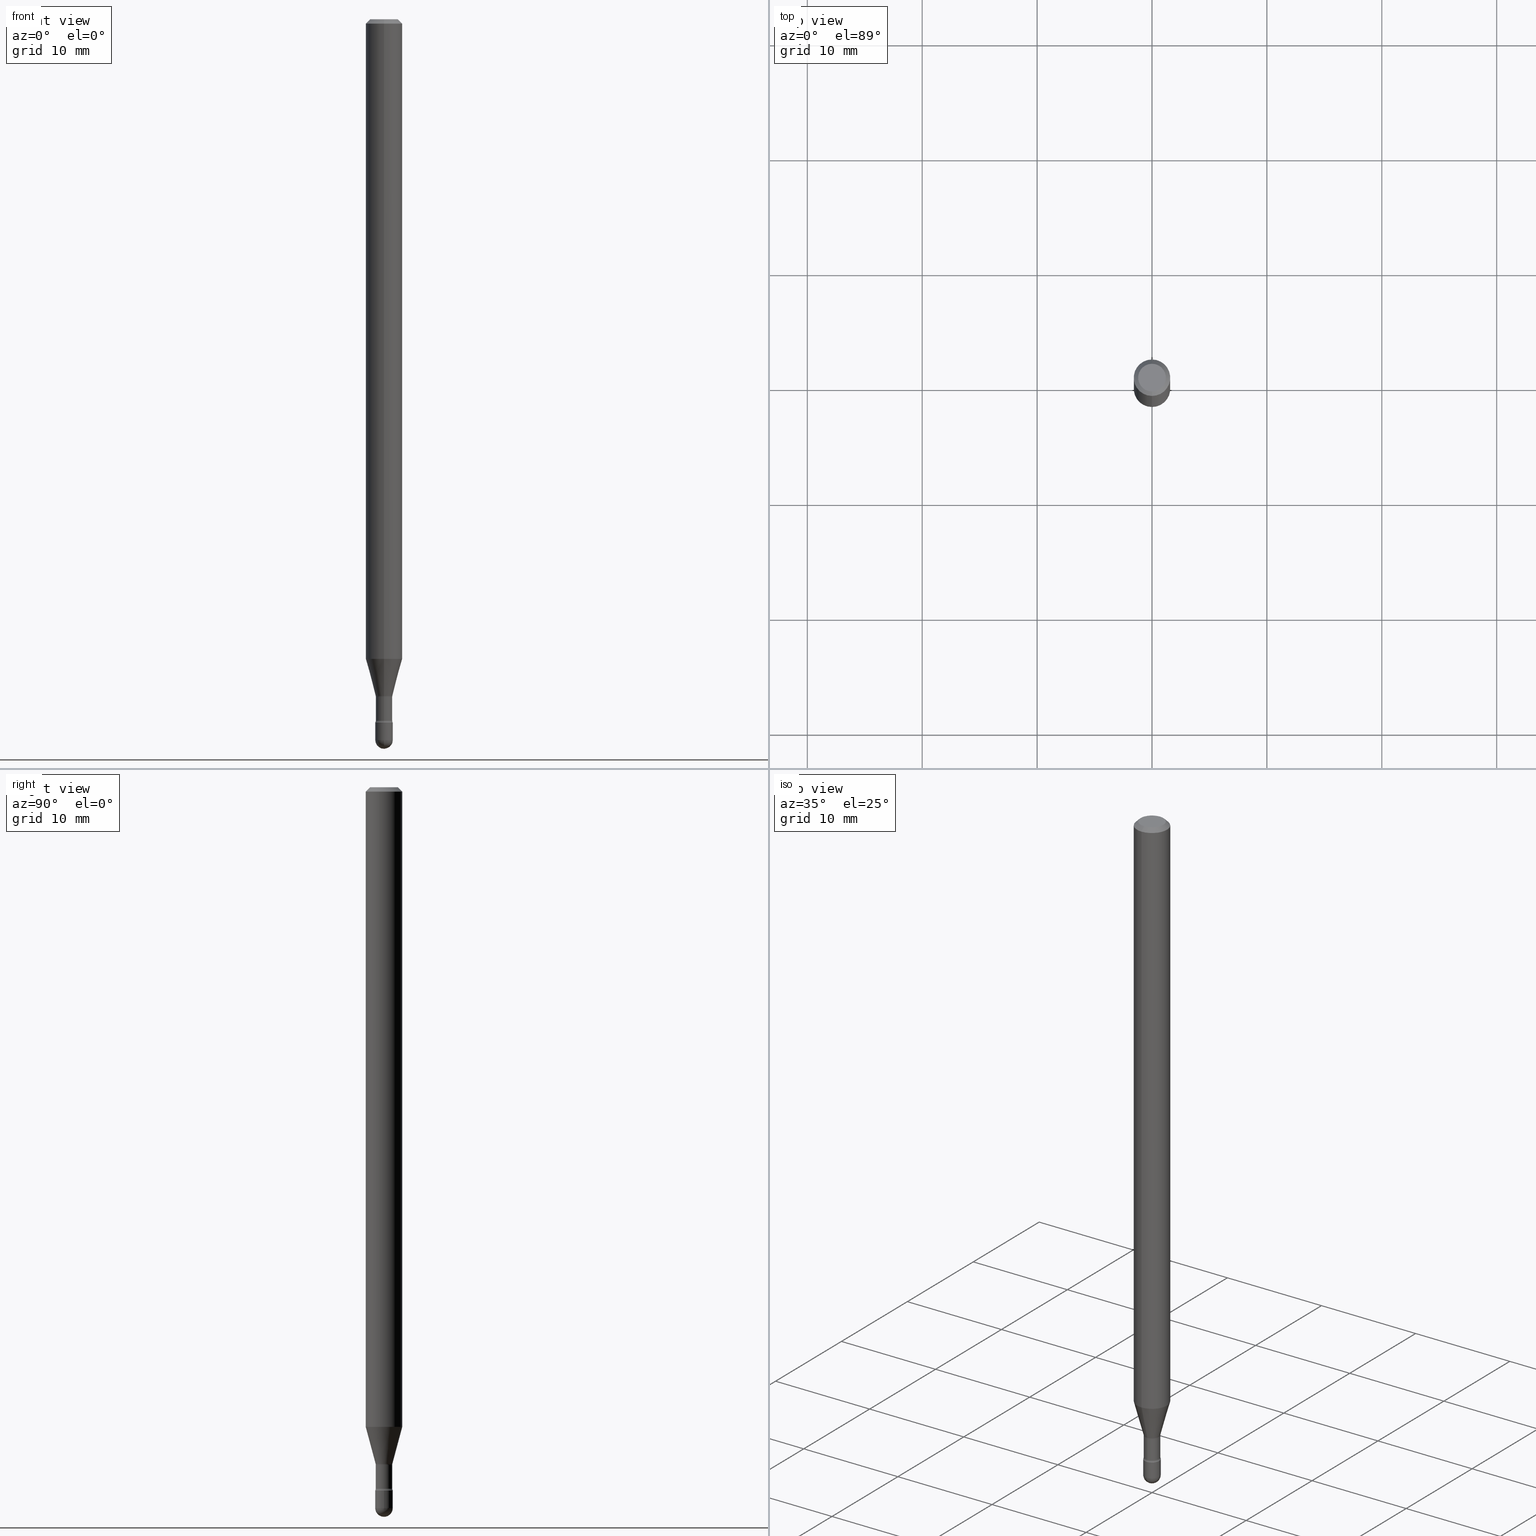
[diagram: canonical four-view strip — front | top / right | iso, engineering-drawing reading convention]
A machine part, canonical four-view strip (front | top / right | iso — engineering-drawing reading convention). The complete STEP part file that produces these views, byte-faithful:
ISO-10303-21;
HEADER;
FILE_DESCRIPTION (( 'STEP AP203' ),
    '1' );
FILE_NAME ('03817.STEP',
    '2024-04-09T20:35:23',
    ( '' ),
    ( '' ),
    'SwSTEP 2.0',
    'SolidWorks 2023',
    '' );
FILE_SCHEMA (( 'CONFIG_CONTROL_DESIGN' ));
ENDSEC;

DATA;
#1 = LINE ( 'NONE', #53, #278 ) ;
#2 = EDGE_CURVE ( 'NONE', #493, #97, #381, .T. ) ;
#3 = DIRECTION ( 'NONE',  ( 1.839019923739598738E-15, 0.2588190451025247363, 0.9659258262890673130 ) ) ;
#4 = DIRECTION ( 'NONE',  ( -2.445513622403205886E-29, 3.491417159468089591E-15, 1.000000000000000000 ) ) ;
#5 = EDGE_LOOP ( 'NONE', ( #270, #129, #211, #274 ) ) ;
#6 = CARTESIAN_POINT ( 'NONE',  ( 5.678316911491112973E-29, -8.107131639694176138E-15, -2.321974787463811030 ) ) ;
#7 = PLANE ( 'NONE',  #28 ) ;
#8 = AXIS2_PLACEMENT_3D ( 'NONE', #256, #91, #373 ) ;
#9 = CARTESIAN_POINT ( 'NONE',  ( 5.893579822906179826E-29, -8.414470026611981678E-15, -2.410000000000000142 ) ) ;
#10 = CC_DESIGN_APPROVAL ( #366, ( #403 ) ) ;
#11 = FACE_OUTER_BOUND ( 'NONE', #27, .T. ) ;
#12 = CARTESIAN_POINT ( 'NONE',  ( 3.668270433604828955E-31, -5.237125739202163402E-17, -0.01500000000000008271 ) ) ;
#13 = COORDINATED_UNIVERSAL_TIME_OFFSET ( 5, 0, .BEHIND. ) ;
#14 = APPLICATION_PROTOCOL_DEFINITION ( 'international standard', 'config_control_design', 1994, #488 ) ;
#15 = EDGE_CURVE ( 'NONE', #303, #379, #208, .T. ) ;
#16 = DIRECTION ( 'NONE',  ( -2.445513622403205886E-29, 3.491417159468089591E-15, 1.000000000000000000 ) ) ;
#17 = DIRECTION ( 'NONE',  ( -2.445468806185136597E-29, 3.491481338843145583E-15, 1.000000000000000000 ) ) ;
#18 = DATE_TIME_ROLE ( 'creation_date' ) ;
#19 = EDGE_LOOP ( 'NONE', ( #119, #241, #178, #385 ) ) ;
#20 = AXIS2_PLACEMENT_3D ( 'NONE', #398, #16, #508 ) ;
#21 = COORDINATED_UNIVERSAL_TIME_OFFSET ( 5, 0, .BEHIND. ) ;
#22 = PRODUCT_DEFINITION_SHAPE ( 'NONE', 'NONE',  #403 ) ;
#23 = CARTESIAN_POINT ( 'NONE',  ( 0.000000000000000000, 0.000000000000000000, 0.000000000000000000 ) ) ;
#24 = CC_DESIGN_PERSON_AND_ORGANIZATION_ASSIGNMENT ( #352, #282, ( #47 ) ) ;
#25 = DIRECTION ( 'NONE',  ( 1.000000000000000000, -6.982962677686299054E-15, 0.000000000000000000 ) ) ;
#26 = APPROVAL_DATE_TIME ( #554, #268 ) ;
#27 = EDGE_LOOP ( 'NONE', ( #31, #225, #355, #521 ) ) ;
#28 = AXIS2_PLACEMENT_3D ( 'NONE', #172, #523, #138 ) ;
#29 = CYLINDRICAL_SURFACE ( 'NONE', #193, 0.02819999999999999590 ) ;
#30 = ADVANCED_FACE ( 'NONE', ( #258 ), #40, .F. ) ;
#31 = ORIENTED_EDGE ( 'NONE', *, *, #250, .F. ) ;
#32 = FACE_OUTER_BOUND ( 'NONE', #518, .T. ) ;
#33 = DIRECTION ( 'NONE',  ( 6.982962677686265922E-15, 1.000000000000000000, 0.000000000000000000 ) ) ;
#34 = LINE ( 'NONE', #206, #430 ) ;
#35 = CONICAL_SURFACE ( 'NONE', #254, 0.02871111260566398468, 0.2617993877991500740 ) ;
#36 = APPROVAL_PERSON_ORGANIZATION ( #532, #366, #495 ) ;
#37 = ORIENTED_EDGE ( 'NONE', *, *, #463, .F. ) ;
#38 = ORIENTED_EDGE ( 'NONE', *, *, #15, .T. ) ;
#39 = EDGE_CURVE ( 'NONE', #184, #528, #45, .T. ) ;
#40 = PLANE ( 'NONE',  #117 ) ;
#41 = DIRECTION ( 'NONE',  ( -2.445513622403205886E-29, 3.491417159468089591E-15, 1.000000000000000000 ) ) ;
#42 = CARTESIAN_POINT ( 'NONE',  ( 4.440892098501159629E-16, 0.06249999999999233252, -2.191990657300388001 ) ) ;
#43 = ORIENTED_EDGE ( 'NONE', *, *, #60, .F. ) ;
#44 = EDGE_LOOP ( 'NONE', ( #336, #81, #212, #205, #319 ) ) ;
#45 = CIRCLE ( 'NONE', #8, 0.02819999999999999590 ) ;
#46 = CARTESIAN_POINT ( 'NONE',  ( 6.040307951277287977E-29, -8.623958906942569995E-15, -2.470000000000000195 ) ) ;
#47 = PRODUCT_DEFINITION_FORMATION_WITH_SPECIFIED_SOURCE ( 'ANY', '', #496, .NOT_KNOWN. ) ;
#48 = VERTEX_POINT ( 'NONE', #220 ) ;
#49 = EDGE_CURVE ( 'NONE', #442, #150, #489, .T. ) ;
#50 = ORIENTED_EDGE ( 'NONE', *, *, #361, .T. ) ;
#51 = DIRECTION ( 'NONE',  ( 1.000000000000000000, -6.982962677686299054E-15, 0.000000000000000000 ) ) ;
#52 = FACE_OUTER_BOUND ( 'NONE', #380, .T. ) ;
#53 = CARTESIAN_POINT ( 'NONE',  ( 2.003730514843481987E-16, 0.02819999999999999590, 3.796154349942459767E-16 ) ) ;
#54 = DIRECTION ( 'NONE',  ( 1.000000000000000000, -6.982962677686265922E-15, 4.883557194083112340E-29 ) ) ;
#55 = AXIS2_PLACEMENT_3D ( 'NONE', #233, #397, #145 ) ;
#56 = CC_DESIGN_SECURITY_CLASSIFICATION ( #490, ( #47 ) ) ;
#57 = EDGE_CURVE ( 'NONE', #522, #346, #243, .T. ) ;
#58 = CARTESIAN_POINT ( 'NONE',  ( 6.114954764896610855E-29, -8.726866376909143979E-15, -2.500000000000000000 ) ) ;
#59 = PERSON_AND_ORGANIZATION_ROLE ( 'design_supplier' ) ;
#60 = EDGE_CURVE ( 'NONE', #97, #493, #551, .T. ) ;
#61 = PERSON_AND_ORGANIZATION ( #392, #289 ) ;
#62 = CONICAL_SURFACE ( 'NONE', #136, 0.06250000000000000000, 0.7853981633974483900 ) ;
#63 = ADVANCED_FACE ( 'NONE', ( #566 ), #475, .T. ) ;
#64 = CYLINDRICAL_SURFACE ( 'NONE', #161, 0.03000000000000000583 ) ;
#65 = DATE_AND_TIME ( #190, #78 ) ;
#66 = DIRECTION ( 'NONE',  ( -6.982962677686265922E-15, -1.000000000000000000, 4.370956789862821150E-15 ) ) ;
#67 = DIRECTION ( 'NONE',  ( -2.445468806185136597E-29, 3.491481338843145583E-15, 1.000000000000000000 ) ) ;
#68 = DIRECTION ( 'NONE',  ( 2.445513622403205886E-29, -3.491417159468089591E-15, -1.000000000000000000 ) ) ;
#69 = AXIS2_PLACEMENT_3D ( 'NONE', #391, #260, #469 ) ;
#70 = APPROVAL ( #115, 'UNSPECIFIED' ) ;
#71 = FACE_OUTER_BOUND ( 'NONE', #19, .T. ) ;
#72 = FACE_OUTER_BOUND ( 'NONE', #113, .T. ) ;
#73 = DIRECTION ( 'NONE',  ( 6.982962677686265922E-15, 1.000000000000000000, -3.491417159468089197E-15 ) ) ;
#74 = ORIENTED_EDGE ( 'NONE', *, *, #546, .F. ) ;
#75 = COORDINATED_UNIVERSAL_TIME_OFFSET ( 5, 0, .BEHIND. ) ;
#76 = CC_DESIGN_PERSON_AND_ORGANIZATION_ASSIGNMENT ( #324, #492, ( #490 ) ) ;
#77 = AXIS2_PLACEMENT_3D ( 'NONE', #171, #128, #86 ) ;
#78 = LOCAL_TIME ( 16, 35, 23.00000000000000000, #457 ) ;
#79 = DIRECTION ( 'NONE',  ( -6.982962677686265922E-15, -1.000000000000000000, 3.491417159468089197E-15 ) ) ;
#80 = ORIENTED_EDGE ( 'NONE', *, *, #116, .T. ) ;
#81 = ORIENTED_EDGE ( 'NONE', *, *, #463, .T. ) ;
#82 = CARTESIAN_POINT ( 'NONE',  ( -2.094888803305290783E-16, -0.03000000000000841924, -2.410000000000000142 ) ) ;
#83 = ORIENTED_EDGE ( 'NONE', *, *, #39, .F. ) ;
#84 = ORIENTED_EDGE ( 'NONE', *, *, #341, .F. ) ;
#85 = LINE ( 'NONE', #135, #169 ) ;
#86 = DIRECTION ( 'NONE',  ( -6.982962677686265922E-15, -1.000000000000000000, 0.000000000000000000 ) ) ;
#87 = CARTESIAN_POINT ( 'NONE',  ( 5.678420973619539197E-29, -8.106982616803420603E-15, -2.321974787463811030 ) ) ;
#88 = VERTEX_POINT ( 'NONE', #180 ) ;
#89 = ORIENTED_EDGE ( 'NONE', *, *, #15, .F. ) ;
#90 = AXIS2_PLACEMENT_3D ( 'NONE', #120, #294, #73 ) ;
#91 = DIRECTION ( 'NONE',  ( -2.445513622403205886E-29, 3.491417159468089591E-15, 1.000000000000000000 ) ) ;
#92 = CIRCLE ( 'NONE', #125, 0.03000000000000000583 ) ;
#93 = CARTESIAN_POINT ( 'NONE',  ( 0.02999999999999999889, -8.623958906942569995E-15, -2.410000000000000142 ) ) ;
#94 = DIRECTION ( 'NONE',  ( -2.445513622403205886E-29, 3.491417159468089197E-15, 1.000000000000000000 ) ) ;
#95 = ADVANCED_FACE ( 'NONE', ( #290 ), #371, .T. ) ;
#96 = DIRECTION ( 'NONE',  ( -2.445513622403205886E-29, 3.491417159468089591E-15, 1.000000000000000000 ) ) ;
#97 = VERTEX_POINT ( 'NONE', #332 ) ;
#98 = CARTESIAN_POINT ( 'NONE',  ( -4.364351673553382241E-16, -0.06250000000000768829, -2.191990657300387557 ) ) ;
#99 = CARTESIAN_POINT ( 'NONE',  ( 5.678316911491112973E-29, -8.107131639694176138E-15, -2.321974787463811030 ) ) ;
#100 = ORIENTED_EDGE ( 'NONE', *, *, #437, .T. ) ;
#101 = CIRCLE ( 'NONE', #409, 0.02999999999999997807 ) ;
#102 = VECTOR ( 'NONE', #514, 39.37007874015748143 ) ;
#103 = DATE_AND_TIME ( #146, #157 ) ;
#104 = ORIENTED_EDGE ( 'NONE', *, *, #2, .T. ) ;
#105 = DESIGN_CONTEXT ( 'detailed design', #451, 'design' ) ;
#106 = CALENDAR_DATE ( 2024, 9, 4 ) ;
#107 = ADVANCED_FACE ( 'NONE', ( #72 ), #197, .T. ) ;
#108 = CARTESIAN_POINT ( 'NONE',  ( 6.040307951277287977E-29, -8.623958906942569995E-15, -2.470000000000000195 ) ) ;
#109 = DIRECTION ( 'NONE',  ( -2.445468806185136597E-29, 3.491481338843145583E-15, 1.000000000000000000 ) ) ;
#110 = COORDINATED_UNIVERSAL_TIME_OFFSET ( 5, 0, .BEHIND. ) ;
#111 = AXIS2_PLACEMENT_3D ( 'NONE', #384, #96, #269 ) ;
#112 = ADVANCED_FACE ( 'NONE', ( #387 ), #358, .F. ) ;
#113 = EDGE_LOOP ( 'NONE', ( #421, #369, #374, #445, #189 ) ) ;
#114 = EDGE_CURVE ( 'NONE', #549, #348, #504, .T. ) ;
#115 = APPROVAL_STATUS ( 'not_yet_approved' ) ;
#116 = EDGE_CURVE ( 'NONE', #316, #48, #393, .T. ) ;
#117 = AXIS2_PLACEMENT_3D ( 'NONE', #438, #234, #79 ) ;
#118 = LOCAL_TIME ( 16, 35, 23.00000000000000000, #75 ) ;
#119 = ORIENTED_EDGE ( 'NONE', *, *, #386, .T. ) ;
#120 = CARTESIAN_POINT ( 'NONE',  ( 3.316907271900976096E-16, 0.04749999999999999362, 3.181934407495850455E-17 ) ) ;
#121 = ADVANCED_FACE ( 'NONE', ( #501 ), #62, .T. ) ;
#122 = APPROVAL_ROLE ( '' ) ;
#123 = CARTESIAN_POINT ( 'NONE',  ( 3.668270433604828955E-31, -5.237125739202163402E-17, -0.01500000000000008271 ) ) ;
#124 = AXIS2_PLACEMENT_3D ( 'NONE', #292, #330, #547 ) ;
#125 = AXIS2_PLACEMENT_3D ( 'NONE', #126, #562, #181 ) ;
#126 = CARTESIAN_POINT ( 'NONE',  ( 6.040307951277287977E-29, -8.623958906942569995E-15, -2.470000000000000195 ) ) ;
#127 = ORIENTED_EDGE ( 'NONE', *, *, #491, .F. ) ;
#128 = DIRECTION ( 'NONE',  ( -2.445513622403205886E-29, 3.491417159468089591E-15, 1.000000000000000000 ) ) ;
#129 = ORIENTED_EDGE ( 'NONE', *, *, #57, .T. ) ;
#130 = EDGE_LOOP ( 'NONE', ( #283, #471, #343, #143 ) ) ;
#131 = ADVANCED_FACE ( 'NONE', ( #367 ), #29, .T. ) ;
#132 = CARTESIAN_POINT ( 'NONE',  ( -1.169113584055446105E-44, 1.669184350826100908E-30, 4.780733988912460139E-16 ) ) ;
#133 = DIRECTION ( 'NONE',  ( 1.000000000000000000, -6.982962677686268288E-15, 0.000000000000000000 ) ) ;
#134 = CARTESIAN_POINT ( 'NONE',  ( -2.004886277601425921E-16, -0.02871111260567207543, -2.318092501787273108 ) ) ;
#135 = CARTESIAN_POINT ( 'NONE',  ( 2.040047249755045120E-16, 0.02871111260565589046, -2.318092501787273108 ) ) ;
#136 = AXIS2_PLACEMENT_3D ( 'NONE', #459, #68, #412 ) ;
#137 = AXIS2_PLACEMENT_3D ( 'NONE', #351, #304, #133 ) ;
#138 = DIRECTION ( 'NONE',  ( 1.000000000000000000, -6.982962677686265922E-15, 4.876176775795935793E-29 ) ) ;
#139 = CARTESIAN_POINT ( 'NONE',  ( 3.069544618484199959E-16, 0.04319999999999189072, -2.321974787463811474 ) ) ;
#140 = DIRECTION ( 'NONE',  ( -6.982962677686266711E-15, -1.000000000000000000, 0.000000000000000000 ) ) ;
#141 = CYLINDRICAL_SURFACE ( 'NONE', #296, 0.02819999999999999590 ) ;
#142 = DIRECTION ( 'NONE',  ( 4.937700262164548042E-15, 0.7071067811865451302, -0.7071067811865499042 ) ) ;
#143 = ORIENTED_EDGE ( 'NONE', *, *, #536, .F. ) ;
#144 = EDGE_CURVE ( 'NONE', #417, #357, #183, .T. ) ;
#145 = DIRECTION ( 'NONE',  ( -6.982962677686263555E-15, -1.000000000000000000, 0.000000000000000000 ) ) ;
#146 = CALENDAR_DATE ( 2024, 9, 4 ) ;
#147 = AXIS2_PLACEMENT_3D ( 'NONE', #284, #494, #360 ) ;
#148 = CIRCLE ( 'NONE', #265, 0.02819999999999999590 ) ;
#149 = EDGE_CURVE ( 'NONE', #216, #346, #286, .T. ) ;
#150 = VERTEX_POINT ( 'NONE', #538 ) ;
#151 = DIRECTION ( 'NONE',  ( -2.445468806185136597E-29, 3.491481338843145583E-15, 1.000000000000000000 ) ) ;
#152 = MECHANICAL_CONTEXT ( 'NONE', #488, 'mechanical' ) ;
#153 = CARTESIAN_POINT ( 'NONE',  ( 0.03000000000000000583, -2.094888803305880457E-16, 1.462853032738781053E-30 ) ) ;
#154 = DIRECTION ( 'NONE',  ( 7.105427357600997914E-15, 1.000000000000000000, 0.000000000000000000 ) ) ;
#155 = PERSON_AND_ORGANIZATION_ROLE ( 'design_owner' ) ;
#156 = AXIS2_PLACEMENT_3D ( 'NONE', #139, #556, #154 ) ;
#157 = LOCAL_TIME ( 16, 35, 23.00000000000000000, #13 ) ;
#158 = ORIENTED_EDGE ( 'NONE', *, *, #210, .F. ) ;
#159 = EDGE_CURVE ( 'NONE', #184, #97, #524, .T. ) ;
#160 = VERTEX_POINT ( 'NONE', #454 ) ;
#161 = AXIS2_PLACEMENT_3D ( 'NONE', #23, #165, #510 ) ;
#162 = PLANE ( 'NONE',  #90 ) ;
#163 = EDGE_CURVE ( 'NONE', #481, #417, #365, .T. ) ;
#164 = ORIENTED_EDGE ( 'NONE', *, *, #149, .T. ) ;
#165 = DIRECTION ( 'NONE',  ( -2.445468806185136597E-29, 3.491481338843145583E-15, 1.000000000000000000 ) ) ;
#166 = CARTESIAN_POINT ( 'NONE',  ( 5.678420973619539197E-29, -8.106982616803420603E-15, -2.321974787463811030 ) ) ;
#167 = CARTESIAN_POINT ( 'NONE',  ( 4.364351673553919652E-16, 0.06249999999999995143, -0.01500000000000030129 ) ) ;
#168 = DIRECTION ( 'NONE',  ( -2.445513622403205886E-29, 3.491417159468089591E-15, 1.000000000000000000 ) ) ;
#169 = VECTOR ( 'NONE', #3, 39.37007874015748854 ) ;
#170 = CIRCLE ( 'NONE', #382, 0.04749999999999999362 ) ;
#171 = CARTESIAN_POINT ( 'NONE',  ( 5.893687829991725950E-29, -8.414315354318096676E-15, -2.410000000000000142 ) ) ;
#172 = CARTESIAN_POINT ( 'NONE',  ( 5.893579822906179826E-29, -8.414470026611981678E-15, -2.410000000000000142 ) ) ;
#173 = EDGE_LOOP ( 'NONE', ( #419, #43 ) ) ;
#174 = ORIENTED_EDGE ( 'NONE', *, *, #558, .F. ) ;
#175 = CC_DESIGN_DATE_AND_TIME_ASSIGNMENT ( #65, #18, ( #403 ) ) ;
#176 = ORIENTED_EDGE ( 'NONE', *, *, #159, .T. ) ;
#177 = DIRECTION ( 'NONE',  ( -6.982962677686265133E-15, -1.000000000000000000, 0.000000000000000000 ) ) ;
#178 = ORIENTED_EDGE ( 'NONE', *, *, #361, .F. ) ;
#179 = CARTESIAN_POINT ( 'NONE',  ( -3.016639876759879920E-16, -0.04320000000000839835, -2.402875394747777005 ) ) ;
#180 = CARTESIAN_POINT ( 'NONE',  ( 3.240469674128104223E-16, 0.02871111260565589046, -2.318092501787273108 ) ) ;
#181 = DIRECTION ( 'NONE',  ( 1.000000000000000000, -6.982962677686299054E-15, 0.000000000000000000 ) ) ;
#182 = ORIENTED_EDGE ( 'NONE', *, *, #354, .F. ) ;
#183 = CIRCLE ( 'NONE', #455, 0.02999999999999999889 ) ;
#184 = VERTEX_POINT ( 'NONE', #203 ) ;
#185 = ADVANCED_FACE ( 'NONE', ( #196 ), #64, .T. ) ;
#186 = CIRCLE ( 'NONE', #431, 0.02820000000000000284 ) ;
#187 = LINE ( 'NONE', #342, #232 ) ;
#188 = APPROVAL_DATE_TIME ( #103, #70 ) ;
#189 = ORIENTED_EDGE ( 'NONE', *, *, #354, .T. ) ;
#190 = CALENDAR_DATE ( 2024, 9, 4 ) ;
#191 = ORIENTED_EDGE ( 'NONE', *, *, #341, .T. ) ;
#192 = DIRECTION ( 'NONE',  ( 1.000000000000000000, -6.982962677686299054E-15, 0.000000000000000000 ) ) ;
#193 = AXIS2_PLACEMENT_3D ( 'NONE', #204, #545, #422 ) ;
#194 = CLOSED_SHELL ( 'NONE', ( #427, #131, #344, #121, #410, #207, #95, #63, #450, #215, #30, #112, #259, #325 ) ) ;
#195 = TOROIDAL_SURFACE ( 'NONE', #202, 0.04320000000000000923, 0.01500000000000001159 ) ;
#196 = FACE_OUTER_BOUND ( 'NONE', #44, .T. ) ;
#197 = CYLINDRICAL_SURFACE ( 'NONE', #248, 0.03000000000000000583 ) ;
#198 = DIRECTION ( 'NONE',  ( -2.445513622403205886E-29, 3.491417159468089591E-15, 1.000000000000000000 ) ) ;
#199 = ORIENTED_EDGE ( 'NONE', *, *, #460, .T. ) ;
#200 = MANIFOLD_SOLID_BREP ( 'Body-Move/Copy2[2]', #194 ) ;
#201 = CARTESIAN_POINT ( 'NONE',  ( -0.02999999999999999889, -8.306051646049246381E-15, -2.410000000000000142 ) ) ;
#202 = AXIS2_PLACEMENT_3D ( 'NONE', #530, #271, #439 ) ;
#203 = CARTESIAN_POINT ( 'NONE',  ( 2.067679361062480290E-16, 0.02819999999999161025, -2.402875394747777449 ) ) ;
#204 = CARTESIAN_POINT ( 'NONE',  ( -1.169113584055446105E-44, 1.669184350826100908E-30, 4.780733988912460139E-16 ) ) ;
#205 = ORIENTED_EDGE ( 'NONE', *, *, #163, .T. ) ;
#206 = CARTESIAN_POINT ( 'NONE',  ( -4.287811248607203282E-16, -0.06250000000000005551, -0.01499999999999986587 ) ) ;
#207 = ADVANCED_FACE ( 'NONE', ( #71 ), #35, .T. ) ;
#208 = CIRCLE ( 'NONE', #218, 0.06250000000000000000 ) ;
#209 = CIRCLE ( 'NONE', #69, 0.04749999999999999362 ) ;
#210 = EDGE_CURVE ( 'NONE', #339, #303, #34, .T. ) ;
#211 = ORIENTED_EDGE ( 'NONE', *, *, #239, .T. ) ;
#212 = ORIENTED_EDGE ( 'NONE', *, *, #546, .T. ) ;
#213 = DIRECTION ( 'NONE',  ( -6.982962677686265133E-15, -1.000000000000000000, 0.000000000000000000 ) ) ;
#214 = CARTESIAN_POINT ( 'NONE',  ( 6.040307951277287977E-29, -8.623958906942569995E-15, -2.470000000000000195 ) ) ;
#215 = ADVANCED_FACE ( 'NONE', ( #32 ), #162, .F. ) ;
#216 = VERTEX_POINT ( 'NONE', #134 ) ;
#217 = EDGE_LOOP ( 'NONE', ( #83, #176, #448, #517 ) ) ;
#218 = AXIS2_PLACEMENT_3D ( 'NONE', #123, #298, #468 ) ;
#219 = CIRCLE ( 'NONE', #478, 0.03000000000000000583 ) ;
#220 = CARTESIAN_POINT ( 'NONE',  ( -2.131628207279695521E-16, -0.03000000000000861353, -2.470000000000000195 ) ) ;
#221 = DIRECTION ( 'NONE',  ( -2.445468806185136597E-29, 3.491481338843145583E-15, 1.000000000000000000 ) ) ;
#222 = ORIENTED_EDGE ( 'NONE', *, *, #321, .F. ) ;
#223 = DIRECTION ( 'NONE',  ( -6.982962677686265922E-15, -1.000000000000000000, 4.370956789862821150E-15 ) ) ;
#224 = CARTESIAN_POINT ( 'NONE',  ( 2.094888803306483442E-16, 0.02999999999999137038, -2.470000000000000195 ) ) ;
#225 = ORIENTED_EDGE ( 'NONE', *, *, #386, .F. ) ;
#226 = SPHERICAL_SURFACE ( 'NONE', #477, 0.02999999999999997807 ) ;
#227 = CC_DESIGN_PERSON_AND_ORGANIZATION_ASSIGNMENT ( #534, #499, ( #403 ) ) ;
#228 = CARTESIAN_POINT ( 'NONE',  ( -4.364351673553912750E-16, -0.06250000000000005551, -0.01499999999999986587 ) ) ;
#229 = FACE_OUTER_BOUND ( 'NONE', #301, .T. ) ;
#230 = CARTESIAN_POINT ( 'NONE',  ( 6.040307951277287977E-29, -8.623958906942569995E-15, -2.470000000000000195 ) ) ;
#231 = AXIS2_PLACEMENT_3D ( 'NONE', #166, #41, #213 ) ;
#232 = VECTOR ( 'NONE', #473, 39.37007874015748143 ) ;
#233 = CARTESIAN_POINT ( 'NONE',  ( -3.016639876759899148E-16, -0.04320000000000810692, -2.321974787463811030 ) ) ;
#234 = DIRECTION ( 'NONE',  ( -2.445513622403205886E-29, 3.491417159468089197E-15, 1.000000000000000000 ) ) ;
#235 = APPROVAL_ROLE ( '' ) ;
#236 = CARTESIAN_POINT ( 'NONE',  ( -4.364351673553916201E-16, -0.06250000000000000000, 6.962869713580016380E-16 ) ) ;
#237 = DIRECTION ( 'NONE',  ( -2.445513622403205886E-29, 3.491417159468089591E-15, 1.000000000000000000 ) ) ;
#238 = APPROVAL_STATUS ( 'not_yet_approved' ) ;
#239 = EDGE_CURVE ( 'NONE', #346, #303, #308, .T. ) ;
#240 = DIRECTION ( 'NONE',  ( -1.807323732225328562E-15, -0.2588190451025179639, 0.9659258262890690894 ) ) ;
#241 = ORIENTED_EDGE ( 'NONE', *, *, #321, .T. ) ;
#242 =( NAMED_UNIT ( * ) SI_UNIT ( $, .STERADIAN. ) SOLID_ANGLE_UNIT ( ) );
#243 = CIRCLE ( 'NONE', #327, 0.06250000000000000000 ) ;
#244 = AXIS2_PLACEMENT_3D ( 'NONE', #46, #221, #51 ) ;
#245 = ADVANCED_FACE ( 'NONE', ( #52 ), #226, .T. ) ;
#246 = CARTESIAN_POINT ( 'NONE',  ( -2.004886277601425921E-16, -0.02871111260567207543, -2.318092501787273108 ) ) ;
#247 = EDGE_LOOP ( 'NONE', ( #470, #100 ) ) ;
#248 = AXIS2_PLACEMENT_3D ( 'NONE', #539, #109, #320 ) ;
#249 = AXIS2_PLACEMENT_3D ( 'NONE', #179, #434, #140 ) ;
#250 = EDGE_CURVE ( 'NONE', #88, #150, #349, .T. ) ;
#251 = DIRECTION ( 'NONE',  ( -2.445513622403205886E-29, 3.491417159468089591E-15, 1.000000000000000000 ) ) ;
#252 = ORIENTED_EDGE ( 'NONE', *, *, #281, .T. ) ;
#253 = ORIENTED_EDGE ( 'NONE', *, *, #210, .T. ) ;
#254 = AXIS2_PLACEMENT_3D ( 'NONE', #370, #251, #415 ) ;
#255 = LOCAL_TIME ( 16, 35, 23.00000000000000000, #110 ) ;
#256 = CARTESIAN_POINT ( 'NONE',  ( 5.876264510793170584E-29, -8.389440385286048886E-15, -2.402875394747777449 ) ) ;
#257 = DIRECTION ( 'NONE',  ( -2.445513622403205886E-29, 3.491417159468089591E-15, 1.000000000000000000 ) ) ;
#258 = FACE_OUTER_BOUND ( 'NONE', #173, .T. ) ;
#259 = ADVANCED_FACE ( 'NONE', ( #465 ), #141, .T. ) ;
#260 = DIRECTION ( 'NONE',  ( -2.445513622403205886E-29, 3.491417159468089591E-15, 1.000000000000000000 ) ) ;
#261 = LINE ( 'NONE', #345, #335 ) ;
#262 = CLOSED_SHELL ( 'NONE', ( #107, #245, #500, #472, #185 ) ) ;
#263 = EDGE_LOOP ( 'NONE', ( #174, #253, #38, #506 ) ) ;
#264 = TOROIDAL_SURFACE ( 'NONE', #418, 0.04320000000000000229, 0.01500000000000002373 ) ;
#265 = AXIS2_PLACEMENT_3D ( 'NONE', #273, #476, #441 ) ;
#266 = DIRECTION ( 'NONE',  ( -2.445513622403205886E-29, 3.491417159468089591E-15, 1.000000000000000000 ) ) ;
#267 = DIRECTION ( 'NONE',  ( -2.445513622403205886E-29, 3.491417159468089197E-15, 1.000000000000000000 ) ) ;
#268 = APPROVAL ( #544, 'UNSPECIFIED' ) ;
#269 = DIRECTION ( 'NONE',  ( -6.982962677686265922E-15, -1.000000000000000000, 3.491417159468089197E-15 ) ) ;
#270 = ORIENTED_EDGE ( 'NONE', *, *, #525, .F. ) ;
#271 = DIRECTION ( 'NONE',  ( -2.445513622403205886E-29, 3.491417159468089591E-15, 1.000000000000000000 ) ) ;
#272 = DIRECTION ( 'NONE',  ( -2.445513622403205886E-29, 3.491417159468089591E-15, 1.000000000000000000 ) ) ;
#273 = CARTESIAN_POINT ( 'NONE',  ( 5.876264510793170584E-29, -8.389440385286048886E-15, -2.402875394747777449 ) ) ;
#274 = ORIENTED_EDGE ( 'NONE', *, *, #396, .F. ) ;
#275 = FACE_OUTER_BOUND ( 'NONE', #311, .T. ) ;
#276 = DIRECTION ( 'NONE',  ( -6.982962677686265133E-15, -1.000000000000000000, 0.000000000000000000 ) ) ;
#277 = AXIS2_PLACEMENT_3D ( 'NONE', #280, #17, #192 ) ;
#278 = VECTOR ( 'NONE', #267, 39.37007874015748143 ) ;
#279 = PERSON_AND_ORGANIZATION ( #392, #289 ) ;
#280 = CARTESIAN_POINT ( 'NONE',  ( 6.040307951277287977E-29, -8.623958906942569995E-15, -2.470000000000000195 ) ) ;
#281 = EDGE_CURVE ( 'NONE', #316, #549, #101, .T. ) ;
#282 = PERSON_AND_ORGANIZATION_ROLE ( 'creator' ) ;
#283 = ORIENTED_EDGE ( 'NONE', *, *, #515, .F. ) ;
#284 = CARTESIAN_POINT ( 'NONE',  ( 3.069544618484220667E-16, 0.04319999999999161316, -2.402875394747777893 ) ) ;
#285 = DATE_AND_TIME ( #106, #542 ) ;
#286 = LINE ( 'NONE', #246, #334 ) ;
#287 = DATE_AND_TIME ( #402, #255 ) ;
#288 = DIRECTION ( 'NONE',  ( -2.445513622403205886E-29, 3.491417159468089591E-15, 1.000000000000000000 ) ) ;
#289 = ORGANIZATION ( 'UNSPECIFIED', 'UNSPECIFIED', '' ) ;
#290 = FACE_OUTER_BOUND ( 'NONE', #305, .T. ) ;
#291 =( LENGTH_UNIT ( ) NAMED_UNIT ( * ) SI_UNIT ( $, .METRE. ) );
#292 = CARTESIAN_POINT ( 'NONE',  ( 5.668926791111504643E-29, -8.093427937974399086E-15, -2.318092501787273108 ) ) ;
#293 = CIRCLE ( 'NONE', #249, 0.01500000000000001159 ) ;
#294 = DIRECTION ( 'NONE',  ( 2.445513622403205886E-29, -3.491417159468089197E-15, -1.000000000000000000 ) ) ;
#295 = DIMENSIONAL_EXPONENTS ( 1.000000000000000000, 0.000000000000000000, 0.000000000000000000, 0.000000000000000000, 0.000000000000000000, 0.000000000000000000, 0.000000000000000000 ) ;
#296 = AXIS2_PLACEMENT_3D ( 'NONE', #446, #272, #440 ) ;
#297 = CC_DESIGN_APPROVAL ( #268, ( #490 ) ) ;
#298 = DIRECTION ( 'NONE',  ( -2.445513622403205886E-29, 3.491417159468089591E-15, 1.000000000000000000 ) ) ;
#299 = DIRECTION ( 'NONE',  ( -1.000000000000000000, 6.982962677686265922E-15, -4.883557194083112340E-29 ) ) ;
#300 = EDGE_CURVE ( 'NONE', #216, #442, #466, .T. ) ;
#301 = EDGE_LOOP ( 'NONE', ( #84, #485, #425, #564 ) ) ;
#302 = ORIENTED_EDGE ( 'NONE', *, *, #491, .T. ) ;
#303 = VERTEX_POINT ( 'NONE', #228 ) ;
#304 = DIRECTION ( 'NONE',  ( -2.445468806185136597E-29, 3.491481338843145583E-15, 1.000000000000000000 ) ) ;
#305 = EDGE_LOOP ( 'NONE', ( #222, #191, #164, #474 ) ) ;
#306 = CC_DESIGN_DATE_AND_TIME_ASSIGNMENT ( #285, #453, ( #490 ) ) ;
#307 = LINE ( 'NONE', #167, #456 ) ;
#308 = LINE ( 'NONE', #236, #404 ) ;
#309 = AXIS2_PLACEMENT_3D ( 'NONE', #363, #540, #399 ) ;
#310 = DIRECTION ( 'NONE',  ( 2.445513622403205886E-29, -3.491417159468089591E-15, -1.000000000000000000 ) ) ;
#311 = EDGE_LOOP ( 'NONE', ( #50, #555, #89, #553 ) ) ;
#312 = DIRECTION ( 'NONE',  ( -1.000000000000000000, 6.982962677686265922E-15, -4.883557194083112340E-29 ) ) ;
#313 = CARTESIAN_POINT ( 'NONE',  ( -3.773273898774340269E-16, -0.04749999999999999362, 8.309223448287373581E-17 ) ) ;
#314 = CARTESIAN_POINT ( 'NONE',  ( 5.876156823005485882E-29, -8.389594600327222537E-15, -2.402875394747777449 ) ) ;
#315 = FACE_OUTER_BOUND ( 'NONE', #247, .T. ) ;
#316 = VERTEX_POINT ( 'NONE', #58 ) ;
#317 = LENGTH_MEASURE_WITH_UNIT ( LENGTH_MEASURE( 0.02539999999999999897 ), #291 );
#318 = CARTESIAN_POINT ( 'NONE',  ( 6.040307951277287977E-29, -8.623958906942569995E-15, -2.470000000000000195 ) ) ;
#319 = ORIENTED_EDGE ( 'NONE', *, *, #437, .F. ) ;
#320 = DIRECTION ( 'NONE',  ( 1.000000000000000000, -6.982962677686266711E-15, 4.876176775795935793E-29 ) ) ;
#321 = EDGE_CURVE ( 'NONE', #88, #522, #85, .T. ) ;
#322 = TOROIDAL_SURFACE ( 'NONE', #535, 0.04320000000000000229, 0.01500000000000002373 ) ;
#323 = CIRCLE ( 'NONE', #137, 0.02999999999999999889 ) ;
#324 = PERSON_AND_ORGANIZATION ( #392, #289 ) ;
#325 = ADVANCED_FACE ( 'NONE', ( #11 ), #322, .F. ) ;
#326 = APPROVAL_DATE_TIME ( #287, #366 ) ;
#327 = AXIS2_PLACEMENT_3D ( 'NONE', #560, #519, #223 ) ;
#328 = AXIS2_PLACEMENT_3D ( 'NONE', #435, #310, #557 ) ;
#329 = DIRECTION ( 'NONE',  ( -7.105427357601001070E-15, -1.000000000000000000, 0.000000000000000000 ) ) ;
#330 = DIRECTION ( 'NONE',  ( -2.445513622403205886E-29, 3.491417159468089591E-15, 1.000000000000000000 ) ) ;
#331 = UNCERTAINTY_MEASURE_WITH_UNIT (LENGTH_MEASURE( 1.000000000000000082E-05 ), #458, 'distance_accuracy_value', 'NONE');
#332 = CARTESIAN_POINT ( 'NONE',  ( 2.131628207280889906E-16, 0.02999999999999158548, -2.410000000000000142 ) ) ;
#333 = CC_DESIGN_PERSON_AND_ORGANIZATION_ASSIGNMENT ( #449, #59, ( #47 ) ) ;
#334 = VECTOR ( 'NONE', #240, 39.37007874015748854 ) ;
#335 = VECTOR ( 'NONE', #426, 39.37007874015748143 ) ;
#336 = ORIENTED_EDGE ( 'NONE', *, *, #541, .F. ) ;
#337 = EDGE_CURVE ( 'NONE', #528, #493, #293, .T. ) ;
#338 = LINE ( 'NONE', #377, #102 ) ;
#339 = VERTEX_POINT ( 'NONE', #313 ) ;
#340 = APPROVAL_PERSON_ORGANIZATION ( #61, #268, #122 ) ;
#341 = EDGE_CURVE ( 'NONE', #88, #216, #444, .T. ) ;
#342 = CARTESIAN_POINT ( 'NONE',  ( 4.440892098500625669E-16, 0.06250000000000000000, 2.598598264244904884E-16 ) ) ;
#343 = ORIENTED_EDGE ( 'NONE', *, *, #462, .T. ) ;
#344 = ADVANCED_FACE ( 'NONE', ( #533 ), #195, .F. ) ;
#345 = CARTESIAN_POINT ( 'NONE',  ( -0.03000000000000000583, 2.131628207280300972E-16, -1.475680527076471882E-30 ) ) ;
#346 = VERTEX_POINT ( 'NONE', #98 ) ;
#347 = DIRECTION ( 'NONE',  ( -6.982962677686266711E-15, -1.000000000000000000, 3.491417159468089591E-15 ) ) ;
#348 = VERTEX_POINT ( 'NONE', #480 ) ;
#349 = CIRCLE ( 'NONE', #156, 0.01500000000000002720 ) ;
#350 = CIRCLE ( 'NONE', #527, 0.06250000000000000000 ) ;
#351 = CARTESIAN_POINT ( 'NONE',  ( 5.893579822906179826E-29, -8.414470026611981678E-15, -2.410000000000000142 ) ) ;
#352 = PERSON_AND_ORGANIZATION ( #392, #289 ) ;
#353 = ORIENTED_EDGE ( 'NONE', *, *, #159, .F. ) ;
#354 = EDGE_CURVE ( 'NONE', #481, #549, #219, .T. ) ;
#355 = ORIENTED_EDGE ( 'NONE', *, *, #300, .T. ) ;
#356 = DIRECTION ( 'NONE',  ( -6.982962677686266711E-15, -1.000000000000000000, 3.491417159468089986E-15 ) ) ;
#357 = VERTEX_POINT ( 'NONE', #201 ) ;
#358 = TOROIDAL_SURFACE ( 'NONE', #443, 0.04320000000000000923, 0.01500000000000001159 ) ;
#359 = SECURITY_CLASSIFICATION_LEVEL ( 'unclassified' ) ;
#360 = DIRECTION ( 'NONE',  ( 7.105427357601001859E-15, 1.000000000000000000, 0.000000000000000000 ) ) ;
#361 = EDGE_CURVE ( 'NONE', #346, #522, #372, .T. ) ;
#362 =( NAMED_UNIT ( * ) PLANE_ANGLE_UNIT ( ) SI_UNIT ( $, .RADIAN. ) );
#363 = CARTESIAN_POINT ( 'NONE',  ( 0.000000000000000000, 0.000000000000000000, 0.000000000000000000 ) ) ;
#364 = AXIS2_PLACEMENT_3D ( 'NONE', #513, #376, #383 ) ;
#365 = LINE ( 'NONE', #153, #428 ) ;
#366 = APPROVAL ( #238, 'UNSPECIFIED' ) ;
#367 = FACE_OUTER_BOUND ( 'NONE', #420, .T. ) ;
#368 = EDGE_LOOP ( 'NONE', ( #509, #252, #182, #74 ) ) ;
#369 = ORIENTED_EDGE ( 'NONE', *, *, #541, .T. ) ;
#370 = CARTESIAN_POINT ( 'NONE',  ( 5.668926791111504643E-29, -8.093427937974399086E-15, -2.318092501787273108 ) ) ;
#371 = CONICAL_SURFACE ( 'NONE', #124, 0.02871111260566398468, 0.2617993877991500740 ) ;
#372 = CIRCLE ( 'NONE', #411, 0.06250000000000000000 ) ;
#373 = DIRECTION ( 'NONE',  ( -6.982962677686265922E-15, -1.000000000000000000, 0.000000000000000000 ) ) ;
#374 = ORIENTED_EDGE ( 'NONE', *, *, #144, .F. ) ;
#375 = CARTESIAN_POINT ( 'NONE',  ( 4.440892098501165545E-16, 0.06249999999999995143, -0.01500000000000030129 ) ) ;
#376 = DIRECTION ( 'NONE',  ( -2.445513622403205886E-29, 3.491417159468089591E-15, 1.000000000000000000 ) ) ;
#377 = CARTESIAN_POINT ( 'NONE',  ( -1.969195475107526777E-16, -0.02819999999999999590, 5.765313627882461990E-16 ) ) ;
#378 = CARTESIAN_POINT ( 'NONE',  ( -1.969195475106959290E-16, -0.02820000000000810747, -2.321974787463811030 ) ) ;
#379 = VERTEX_POINT ( 'NONE', #375 ) ;
#380 = EDGE_LOOP ( 'NONE', ( #487, #80, #37, #464 ) ) ;
#381 = CIRCLE ( 'NONE', #364, 0.02999999999999999889 ) ;
#382 = AXIS2_PLACEMENT_3D ( 'NONE', #389, #198, #356 ) ;
#383 = DIRECTION ( 'NONE',  ( -6.982962677686265922E-15, -1.000000000000000000, 0.000000000000000000 ) ) ;
#384 = CARTESIAN_POINT ( 'NONE',  ( -1.169113584055446105E-44, 1.669184350826100908E-30, 4.780733988912460139E-16 ) ) ;
#385 = ORIENTED_EDGE ( 'NONE', *, *, #149, .F. ) ;
#386 = EDGE_CURVE ( 'NONE', #216, #88, #552, .T. ) ;
#387 = FACE_OUTER_BOUND ( 'NONE', #401, .T. ) ;
#388 = DIRECTION ( 'NONE',  ( -6.982962677686265922E-15, -1.000000000000000000, 3.491417159468089197E-15 ) ) ;
#389 = CARTESIAN_POINT ( 'NONE',  ( 2.023878747840558367E-45, -2.888843688738174101E-31, -8.275008059186050695E-17 ) ) ;
#390 = ORIENTED_EDGE ( 'NONE', *, *, #337, .T. ) ;
#391 = CARTESIAN_POINT ( 'NONE',  ( 2.023878747840558367E-45, -2.888843688738174101E-31, -8.275008059186050695E-17 ) ) ;
#392 = PERSON ( 'UNSPECIFIED', 'UNSPECIFIED', 'UNSPECIFIED', ('UNSPECIFIED'), ('UNSPECIFIED'), ('UNSPECIFIED') ) ;
#393 = CIRCLE ( 'NONE', #561, 0.02999999999999997807 ) ;
#394 = CARTESIAN_POINT ( 'NONE',  ( 5.668926791111504643E-29, -8.093427937974399086E-15, -2.318092501787273108 ) ) ;
#395 = APPROVAL_PERSON_ORGANIZATION ( #447, #70, #235 ) ;
#396 = EDGE_CURVE ( 'NONE', #379, #303, #350, .T. ) ;
#397 = DIRECTION ( 'NONE',  ( -1.000000000000000000, 6.982962677686265922E-15, -4.883557194083112340E-29 ) ) ;
#398 = CARTESIAN_POINT ( 'NONE',  ( 5.668926791111504643E-29, -8.093427937974399086E-15, -2.318092501787273108 ) ) ;
#399 = DIRECTION ( 'NONE',  ( 1.000000000000000000, 0.000000000000000000, 0.000000000000000000 ) ) ;
#400 = DIRECTION ( 'NONE',  ( -6.982962677686266711E-15, -1.000000000000000000, 3.491417159468089591E-15 ) ) ;
#401 = EDGE_LOOP ( 'NONE', ( #353, #429, #390, #104 ) ) ;
#402 = CALENDAR_DATE ( 2024, 9, 4 ) ;
#403 = PRODUCT_DEFINITION ( 'UNKNOWN', '', #47, #105 ) ;
#404 = VECTOR ( 'NONE', #94, 39.37007874015748143 ) ;
#405 = CIRCLE ( 'NONE', #244, 0.03000000000000000583 ) ;
#406 = APPLICATION_PROTOCOL_DEFINITION ( 'international standard', 'config_control_design', 1994, #451 ) ;
#407 = EDGE_LOOP ( 'NONE', ( #158, #127, #199, #424 ) ) ;
#408 = SHAPE_DEFINITION_REPRESENTATION ( #22, #502 ) ;
#409 = AXIS2_PLACEMENT_3D ( 'NONE', #483, #54, #531 ) ;
#410 = ADVANCED_FACE ( 'NONE', ( #275 ), #559, .T. ) ;
#411 = AXIS2_PLACEMENT_3D ( 'NONE', #543, #288, #66 ) ;
#412 = DIRECTION ( 'NONE',  ( 6.982962677686265922E-15, 1.000000000000000000, -3.483106191921935554E-15 ) ) ;
#413 = CALENDAR_DATE ( 2024, 9, 4 ) ;
#414 = ORIENTED_EDGE ( 'NONE', *, *, #558, .T. ) ;
#415 = DIRECTION ( 'NONE',  ( -6.982962677686265133E-15, -1.000000000000000000, 0.000000000000000000 ) ) ;
#416 = EDGE_CURVE ( 'NONE', #528, #184, #148, .T. ) ;
#417 = VERTEX_POINT ( 'NONE', #93 ) ;
#418 = AXIS2_PLACEMENT_3D ( 'NONE', #99, #4, #347 ) ;
#419 = ORIENTED_EDGE ( 'NONE', *, *, #2, .F. ) ;
#420 = EDGE_LOOP ( 'NONE', ( #512, #432, #565, #526 ) ) ;
#421 = ORIENTED_EDGE ( 'NONE', *, *, #114, .T. ) ;
#422 = DIRECTION ( 'NONE',  ( -6.982962677686265922E-15, -1.000000000000000000, 3.491417159468089591E-15 ) ) ;
#423 = CARTESIAN_POINT ( 'NONE',  ( 0.03000000000000000583, -8.728703347107864943E-15, -2.470000000000000195 ) ) ;
#424 = ORIENTED_EDGE ( 'NONE', *, *, #396, .T. ) ;
#425 = ORIENTED_EDGE ( 'NONE', *, *, #536, .T. ) ;
#426 = DIRECTION ( 'NONE',  ( -2.445468806185136877E-29, 3.491481338843145188E-15, 1.000000000000000000 ) ) ;
#427 = ADVANCED_FACE ( 'NONE', ( #229 ), #264, .F. ) ;
#428 = VECTOR ( 'NONE', #452, 39.37007874015748143 ) ;
#429 = ORIENTED_EDGE ( 'NONE', *, *, #416, .F. ) ;
#430 = VECTOR ( 'NONE', #550, 39.37007874015748143 ) ;
#431 = AXIS2_PLACEMENT_3D ( 'NONE', #87, #529, #177 ) ;
#432 = ORIENTED_EDGE ( 'NONE', *, *, #515, .T. ) ;
#433 = CARTESIAN_POINT ( 'NONE',  ( -1.969195475106939322E-16, -0.02820000000000838503, -2.402875394747777449 ) ) ;
#434 = DIRECTION ( 'NONE',  ( -1.000000000000000000, 6.982962677686265922E-15, -4.883557194083112340E-29 ) ) ;
#435 = CARTESIAN_POINT ( 'NONE',  ( 3.668270433604828955E-31, -5.237125739202163402E-17, -0.01500000000000008271 ) ) ;
#436 = DIRECTION ( 'NONE',  ( -2.445513622403205886E-29, 3.491417159468089591E-15, 1.000000000000000000 ) ) ;
#437 = EDGE_CURVE ( 'NONE', #357, #417, #323, .T. ) ;
#438 = CARTESIAN_POINT ( 'NONE',  ( 2.094888803306469144E-16, 0.02999999999999158548, -2.410000000000000142 ) ) ;
#439 = DIRECTION ( 'NONE',  ( -6.982962677686266711E-15, -1.000000000000000000, 3.491417159468089591E-15 ) ) ;
#440 = DIRECTION ( 'NONE',  ( -6.982962677686265922E-15, -1.000000000000000000, 3.491417159468089591E-15 ) ) ;
#441 = DIRECTION ( 'NONE',  ( -6.982962677686265922E-15, -1.000000000000000000, 0.000000000000000000 ) ) ;
#442 = VERTEX_POINT ( 'NONE', #378 ) ;
#443 = AXIS2_PLACEMENT_3D ( 'NONE', #314, #237, #400 ) ;
#444 = CIRCLE ( 'NONE', #507, 0.02871111260566398468 ) ;
#445 = ORIENTED_EDGE ( 'NONE', *, *, #163, .F. ) ;
#446 = CARTESIAN_POINT ( 'NONE',  ( -1.169113584055446105E-44, 1.669184350826100908E-30, 4.780733988912460139E-16 ) ) ;
#447 = PERSON_AND_ORGANIZATION ( #392, #289 ) ;
#448 = ORIENTED_EDGE ( 'NONE', *, *, #60, .T. ) ;
#449 = PERSON_AND_ORGANIZATION ( #392, #289 ) ;
#450 = ADVANCED_FACE ( 'NONE', ( #484 ), #563, .T. ) ;
#451 = APPLICATION_CONTEXT ( 'configuration controlled 3d designs of mechanical parts and assemblies' ) ;
#452 = DIRECTION ( 'NONE',  ( -2.445468806185136877E-29, 3.491481338843145188E-15, 1.000000000000000000 ) ) ;
#453 = DATE_TIME_ROLE ( 'classification_date' ) ;
#454 = CARTESIAN_POINT ( 'NONE',  ( 3.840629472727447874E-16, 0.04749999999999999362, -2.485923956665947374E-16 ) ) ;
#455 = AXIS2_PLACEMENT_3D ( 'NONE', #9, #67, #503 ) ;
#456 = VECTOR ( 'NONE', #142, 39.37007874015748143 ) ;
#457 = COORDINATED_UNIVERSAL_TIME_OFFSET ( 5, 0, .BEHIND. ) ;
#458 =( CONVERSION_BASED_UNIT ( 'INCH', #317 ) LENGTH_UNIT ( ) NAMED_UNIT ( #295 ) );
#459 = CARTESIAN_POINT ( 'NONE',  ( 3.668270433604828955E-31, -5.237125739202163402E-17, -0.01500000000000008271 ) ) ;
#460 = EDGE_CURVE ( 'NONE', #160, #379, #307, .T. ) ;
#461 = DIRECTION ( 'NONE',  ( -1.000000000000000000, 7.105427357601001070E-15, -4.926315508542082329E-29 ) ) ;
#462 = EDGE_CURVE ( 'NONE', #528, #442, #338, .T. ) ;
#463 = EDGE_CURVE ( 'NONE', #348, #48, #92, .T. ) ;
#464 = ORIENTED_EDGE ( 'NONE', *, *, #114, .F. ) ;
#465 = FACE_OUTER_BOUND ( 'NONE', #130, .T. ) ;
#466 = CIRCLE ( 'NONE', #55, 0.01500000000000002720 ) ;
#467 = CC_DESIGN_APPROVAL ( #70, ( #47 ) ) ;
#468 = DIRECTION ( 'NONE',  ( -6.982962677686265922E-15, -1.000000000000000000, 3.483106191921935554E-15 ) ) ;
#469 = DIRECTION ( 'NONE',  ( -6.982962677686266711E-15, -1.000000000000000000, 3.491417159468089986E-15 ) ) ;
#470 = ORIENTED_EDGE ( 'NONE', *, *, #144, .T. ) ;
#471 = ORIENTED_EDGE ( 'NONE', *, *, #39, .T. ) ;
#472 = ADVANCED_FACE ( 'NONE', ( #516 ), #479, .T. ) ;
#473 = DIRECTION ( 'NONE',  ( -2.445513622403205886E-29, 3.491417159468089197E-15, 1.000000000000000000 ) ) ;
#474 = ORIENTED_EDGE ( 'NONE', *, *, #57, .F. ) ;
#475 = CYLINDRICAL_SURFACE ( 'NONE', #497, 0.06250000000000000000 ) ;
#476 = DIRECTION ( 'NONE',  ( -2.445513622403205886E-29, 3.491417159468089591E-15, 1.000000000000000000 ) ) ;
#477 = AXIS2_PLACEMENT_3D ( 'NONE', #230, #312, #33 ) ;
#478 = AXIS2_PLACEMENT_3D ( 'NONE', #318, #151, #25 ) ;
#479 = SPHERICAL_SURFACE ( 'NONE', #537, 0.02999999999999997807 ) ;
#480 = CARTESIAN_POINT ( 'NONE',  ( -0.03000000000000000583, -8.306051646049246381E-15, -2.470000000000000195 ) ) ;
#481 = VERTEX_POINT ( 'NONE', #423 ) ;
#482 = PRODUCT_RELATED_PRODUCT_CATEGORY ( 'detail', '', ( #496 ) ) ;
#483 = CARTESIAN_POINT ( 'NONE',  ( 6.040307951277287977E-29, -8.623958906942569995E-15, -2.470000000000000195 ) ) ;
#484 = FACE_OUTER_BOUND ( 'NONE', #407, .T. ) ;
#485 = ORIENTED_EDGE ( 'NONE', *, *, #250, .T. ) ;
#486 = DIRECTION ( 'NONE',  ( -6.982962677686266711E-15, -1.000000000000000000, 3.491417159468089591E-15 ) ) ;
#487 = ORIENTED_EDGE ( 'NONE', *, *, #281, .F. ) ;
#488 = APPLICATION_CONTEXT ( 'configuration controlled 3d designs of mechanical parts and assemblies' ) ;
#489 = CIRCLE ( 'NONE', #231, 0.02820000000000000284 ) ;
#490 = SECURITY_CLASSIFICATION ( '', '', #359 ) ;
#491 = EDGE_CURVE ( 'NONE', #160, #339, #209, .T. ) ;
#492 = PERSON_AND_ORGANIZATION_ROLE ( 'classification_officer' ) ;
#493 = VERTEX_POINT ( 'NONE', #82 ) ;
#494 = DIRECTION ( 'NONE',  ( 1.000000000000000000, -7.105427357601001070E-15, 4.926314722571419961E-29 ) ) ;
#495 = APPROVAL_ROLE ( '' ) ;
#496 = PRODUCT ( '03817', '03817', '', ( #152 ) ) ;
#497 = AXIS2_PLACEMENT_3D ( 'NONE', #132, #266, #388 ) ;
#498 =( GEOMETRIC_REPRESENTATION_CONTEXT ( 3 ) GLOBAL_UNCERTAINTY_ASSIGNED_CONTEXT ( ( #331 ) ) GLOBAL_UNIT_ASSIGNED_CONTEXT ( ( #458, #362, #242 ) ) REPRESENTATION_CONTEXT ( 'NONE', 'WORKASPACE' ) );
#499 = PERSON_AND_ORGANIZATION_ROLE ( 'creator' ) ;
#500 = ADVANCED_FACE ( 'NONE', ( #315 ), #7, .T. ) ;
#501 = FACE_OUTER_BOUND ( 'NONE', #263, .T. ) ;
#502 = ADVANCED_BREP_SHAPE_REPRESENTATION ( '03817', ( #548, #200, #309 ), #498 ) ;
#503 = DIRECTION ( 'NONE',  ( 1.000000000000000000, -6.982962677686268288E-15, 0.000000000000000000 ) ) ;
#504 = CIRCLE ( 'NONE', #277, 0.03000000000000000583 ) ;
#505 = CC_DESIGN_PERSON_AND_ORGANIZATION_ASSIGNMENT ( #279, #155, ( #496 ) ) ;
#506 = ORIENTED_EDGE ( 'NONE', *, *, #460, .F. ) ;
#507 = AXIS2_PLACEMENT_3D ( 'NONE', #394, #436, #276 ) ;
#508 = DIRECTION ( 'NONE',  ( -6.982962677686265133E-15, -1.000000000000000000, 0.000000000000000000 ) ) ;
#509 = ORIENTED_EDGE ( 'NONE', *, *, #116, .F. ) ;
#510 = DIRECTION ( 'NONE',  ( 1.000000000000000000, -6.982962677686266711E-15, 4.876176775795935793E-29 ) ) ;
#511 = DIRECTION ( 'NONE',  ( -6.982962677686265922E-15, -1.000000000000000000, 3.483106191921935554E-15 ) ) ;
#512 = ORIENTED_EDGE ( 'NONE', *, *, #416, .T. ) ;
#513 = CARTESIAN_POINT ( 'NONE',  ( 5.893687829991725950E-29, -8.414315354318096676E-15, -2.410000000000000142 ) ) ;
#514 = DIRECTION ( 'NONE',  ( -2.445513622403205886E-29, 3.491417159468089197E-15, 1.000000000000000000 ) ) ;
#515 = EDGE_CURVE ( 'NONE', #184, #150, #1, .T. ) ;
#516 = FACE_OUTER_BOUND ( 'NONE', #368, .T. ) ;
#517 = ORIENTED_EDGE ( 'NONE', *, *, #337, .F. ) ;
#518 = EDGE_LOOP ( 'NONE', ( #302, #414 ) ) ;
#519 = DIRECTION ( 'NONE',  ( -2.445513622403205886E-29, 3.491417159468089591E-15, 1.000000000000000000 ) ) ;
#520 = DIRECTION ( 'NONE',  ( 6.982962677686265922E-15, 1.000000000000000000, 0.000000000000000000 ) ) ;
#521 = ORIENTED_EDGE ( 'NONE', *, *, #49, .T. ) ;
#522 = VERTEX_POINT ( 'NONE', #42 ) ;
#523 = DIRECTION ( 'NONE',  ( -2.438088387897960049E-29, 3.491481338843145188E-15, 1.000000000000000000 ) ) ;
#524 = CIRCLE ( 'NONE', #147, 0.01500000000000001159 ) ;
#525 = EDGE_CURVE ( 'NONE', #522, #379, #187, .T. ) ;
#526 = ORIENTED_EDGE ( 'NONE', *, *, #462, .F. ) ;
#527 = AXIS2_PLACEMENT_3D ( 'NONE', #12, #257, #511 ) ;
#528 = VERTEX_POINT ( 'NONE', #433 ) ;
#529 = DIRECTION ( 'NONE',  ( -2.445513622403205886E-29, 3.491417159468089591E-15, 1.000000000000000000 ) ) ;
#530 = CARTESIAN_POINT ( 'NONE',  ( 5.876156823005485882E-29, -8.389594600327222537E-15, -2.402875394747777449 ) ) ;
#531 = DIRECTION ( 'NONE',  ( 6.982962677686265922E-15, 1.000000000000000000, 0.000000000000000000 ) ) ;
#532 = PERSON_AND_ORGANIZATION ( #392, #289 ) ;
#533 = FACE_OUTER_BOUND ( 'NONE', #217, .T. ) ;
#534 = PERSON_AND_ORGANIZATION ( #392, #289 ) ;
#535 = AXIS2_PLACEMENT_3D ( 'NONE', #6, #168, #486 ) ;
#536 = EDGE_CURVE ( 'NONE', #150, #442, #186, .T. ) ;
#537 = AXIS2_PLACEMENT_3D ( 'NONE', #214, #299, #520 ) ;
#538 = CARTESIAN_POINT ( 'NONE',  ( 2.003730514844070181E-16, 0.02819999999999189474, -2.321974787463811030 ) ) ;
#539 = CARTESIAN_POINT ( 'NONE',  ( 0.000000000000000000, 0.000000000000000000, 0.000000000000000000 ) ) ;
#540 = DIRECTION ( 'NONE',  ( 0.000000000000000000, 0.000000000000000000, 1.000000000000000000 ) ) ;
#541 = EDGE_CURVE ( 'NONE', #348, #357, #261, .T. ) ;
#542 = LOCAL_TIME ( 16, 35, 23.00000000000000000, #21 ) ;
#543 = CARTESIAN_POINT ( 'NONE',  ( 5.360543012608655241E-29, -7.653153794292311533E-15, -2.191990657300388001 ) ) ;
#544 = APPROVAL_STATUS ( 'not_yet_approved' ) ;
#545 = DIRECTION ( 'NONE',  ( -2.445513622403205886E-29, 3.491417159468089591E-15, 1.000000000000000000 ) ) ;
#546 = EDGE_CURVE ( 'NONE', #48, #481, #405, .T. ) ;
#547 = DIRECTION ( 'NONE',  ( -6.982962677686265133E-15, -1.000000000000000000, 0.000000000000000000 ) ) ;
#548 = MANIFOLD_SOLID_BREP ( 'Body-Move/Copy2[1]', #262 ) ;
#549 = VERTEX_POINT ( 'NONE', #224 ) ;
#550 = DIRECTION ( 'NONE',  ( -4.851104656540964275E-15, -0.7071067811865500152, -0.7071067811865450192 ) ) ;
#551 = CIRCLE ( 'NONE', #77, 0.02999999999999999889 ) ;
#552 = CIRCLE ( 'NONE', #20, 0.02871111260566398468 ) ;
#553 = ORIENTED_EDGE ( 'NONE', *, *, #239, .F. ) ;
#554 = DATE_AND_TIME ( #413, #118 ) ;
#555 = ORIENTED_EDGE ( 'NONE', *, *, #525, .T. ) ;
#556 = DIRECTION ( 'NONE',  ( 1.000000000000000000, -7.105427357601001070E-15, 4.926314722571419961E-29 ) ) ;
#557 = DIRECTION ( 'NONE',  ( 6.982962677686265922E-15, 1.000000000000000000, -3.483106191921935554E-15 ) ) ;
#558 = EDGE_CURVE ( 'NONE', #339, #160, #170, .T. ) ;
#559 = CYLINDRICAL_SURFACE ( 'NONE', #111, 0.06250000000000000000 ) ;
#560 = CARTESIAN_POINT ( 'NONE',  ( 5.360543012608655241E-29, -7.653153794292311533E-15, -2.191990657300388001 ) ) ;
#561 = AXIS2_PLACEMENT_3D ( 'NONE', #108, #461, #329 ) ;
#562 = DIRECTION ( 'NONE',  ( -2.445468806185136597E-29, 3.491481338843145583E-15, 1.000000000000000000 ) ) ;
#563 = CONICAL_SURFACE ( 'NONE', #328, 0.06250000000000000000, 0.7853981633974483900 ) ;
#564 = ORIENTED_EDGE ( 'NONE', *, *, #300, .F. ) ;
#565 = ORIENTED_EDGE ( 'NONE', *, *, #49, .F. ) ;
#566 = FACE_OUTER_BOUND ( 'NONE', #5, .T. ) ;
ENDSEC;
END-ISO-10303-21;
